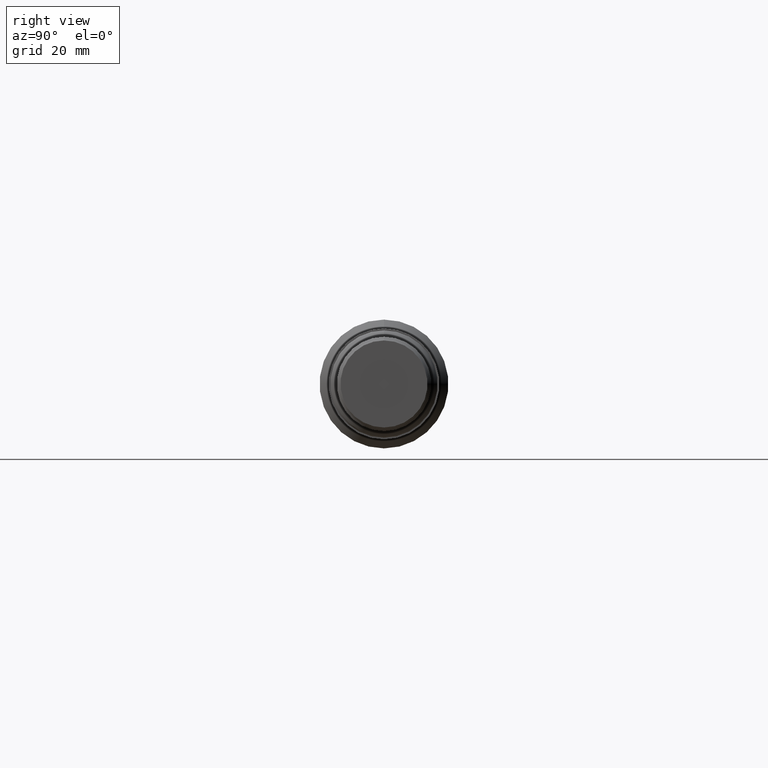
[diagram: clean part render]
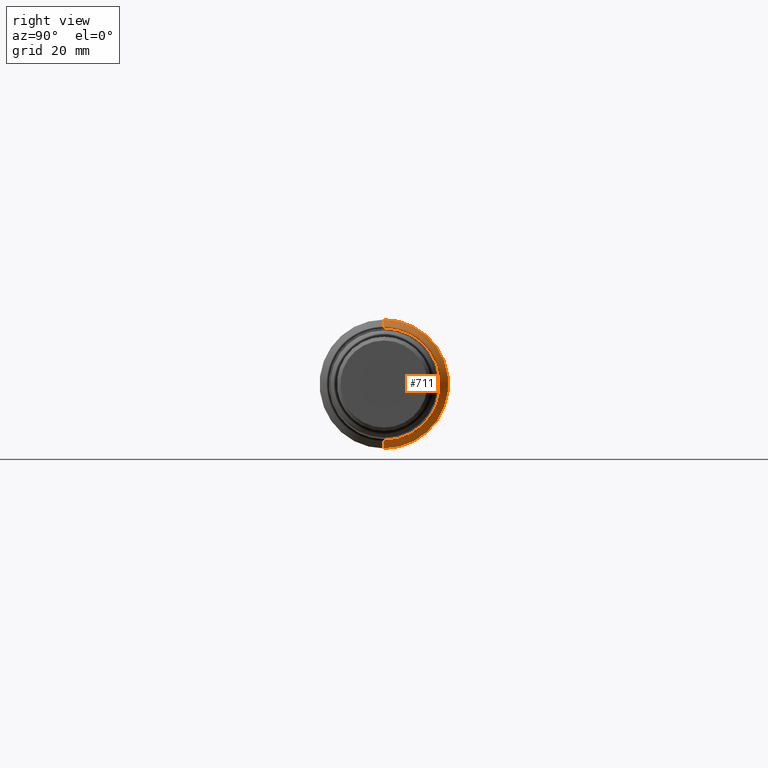
[diagram: same view with one face highlighted and labeled with its STEP entity id]
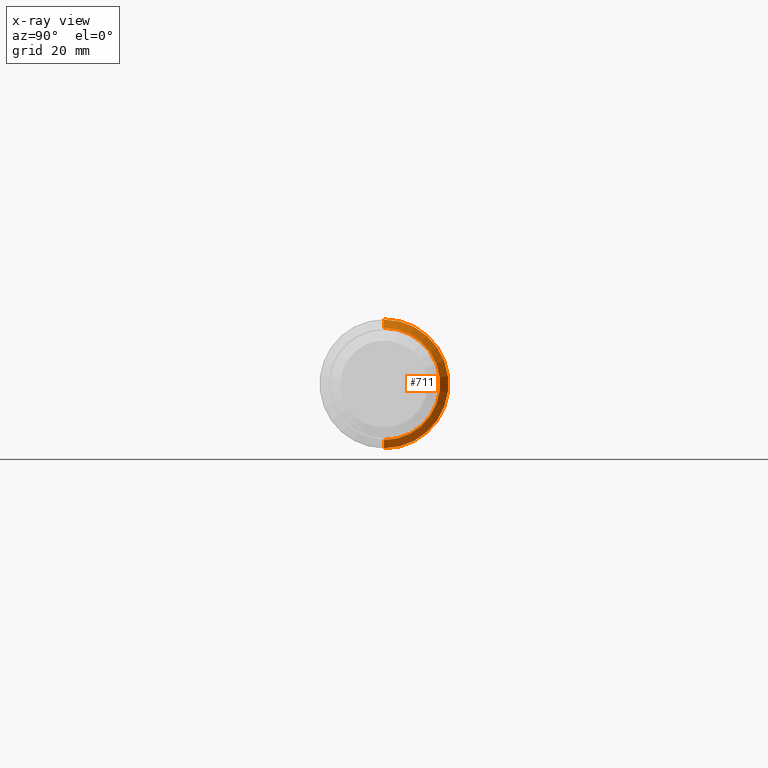
[diagram: x-ray of the same camera — body ghosted, the highlighted face saturated]
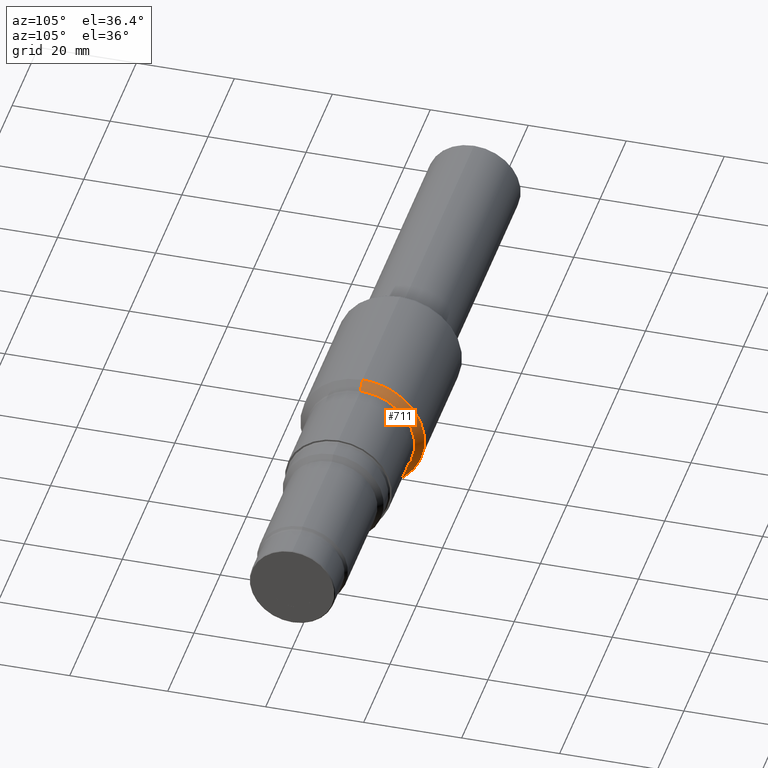
[diagram: same view with one face highlighted and labeled with its STEP entity id]
A machine part, right view. The second image highlights one B-rep face of the part: STEP entity #711.
The next image is the same camera in x-ray: the body ghosted, the highlighted face saturated — about 0% of this face is hidden behind the body in this view.
A second angle (auxiliary view) of the same face is appended — the face is thin or edge-on in the first view.
In plain terms, the highlighted conical surface has half-angle 45 deg.
Its self-contained STEP definition (entity closure, byte-faithful):
#14 = EDGE_CURVE ( 'NONE', #61, #438, #849, .T. ) ;
#17 = DIRECTION ( 'NONE',  ( -0.7071067811865471286, 0.000000000000000000, 0.7071067811865479058 ) ) ;
#29 = CARTESIAN_POINT ( 'NONE',  ( 3.458056349186104050, 0.000000000000000000, 0.4363436508138959780 ) ) ;
#30 = CARTESIAN_POINT ( 'NONE',  ( 3.394400000000000084, 0.000000000000000000, 0.000000000000000000 ) ) ;
#61 = VERTEX_POINT ( 'NONE', #29 ) ;
#82 = DIRECTION ( 'NONE',  ( -1.000000000000000000, -0.000000000000000000, -0.000000000000000000 ) ) ;
#111 = CARTESIAN_POINT ( 'NONE',  ( 3.458056349186104050, 5.343668552975080613E-17, -0.4363436508138959780 ) ) ;
#116 = CONICAL_SURFACE ( 'NONE', #931, 0.4363436508138960335, 0.7853981633974488341 ) ;
#168 = LINE ( 'NONE', #415, #744 ) ;
#250 = CARTESIAN_POINT ( 'NONE',  ( 3.458056349186104050, 0.000000000000000000, 0.000000000000000000 ) ) ;
#274 = DIRECTION ( 'NONE',  ( -1.000000000000000000, -0.000000000000000000, -0.000000000000000000 ) ) ;
#314 = CARTESIAN_POINT ( 'NONE',  ( 3.394400000000000084, 0.000000000000000000, 0.5000000000000000000 ) ) ;
#319 = DIRECTION ( 'NONE',  ( 0.000000000000000000, 0.000000000000000000, 1.000000000000000000 ) ) ;
#356 = VERTEX_POINT ( 'NONE', #314 ) ;
#357 = AXIS2_PLACEMENT_3D ( 'NONE', #1047, #82, #319 ) ;
#415 = CARTESIAN_POINT ( 'NONE',  ( 3.458056349186104050, 5.343668552975081229E-17, -0.4363436508138960335 ) ) ;
#438 = VERTEX_POINT ( 'NONE', #111 ) ;
#468 = CARTESIAN_POINT ( 'NONE',  ( 3.394400000000000084, 6.123233995736766036E-17, -0.5000000000000000000 ) ) ;
#521 = ORIENTED_EDGE ( 'NONE', *, *, #1041, .F. ) ;
#575 = FACE_OUTER_BOUND ( 'NONE', #1027, .T. ) ;
#577 = ORIENTED_EDGE ( 'NONE', *, *, #14, .T. ) ;
#641 = DIRECTION ( 'NONE',  ( -1.000000000000000000, -0.000000000000000000, -0.000000000000000000 ) ) ;
#666 = AXIS2_PLACEMENT_3D ( 'NONE', #30, #274, #814 ) ;
#673 = VERTEX_POINT ( 'NONE', #468 ) ;
#711 = ADVANCED_FACE ( 'NONE', ( #575 ), #116, .T. ) ;
#730 = EDGE_CURVE ( 'NONE', #438, #673, #168, .T. ) ;
#739 = CARTESIAN_POINT ( 'NONE',  ( 3.458056349186104050, 0.000000000000000000, 0.4363436508138960335 ) ) ;
#744 = VECTOR ( 'NONE', #828, 39.37007874015748143 ) ;
#807 = DIRECTION ( 'NONE',  ( 0.000000000000000000, 0.000000000000000000, 1.000000000000000000 ) ) ;
#814 = DIRECTION ( 'NONE',  ( 0.000000000000000000, 0.000000000000000000, 1.000000000000000000 ) ) ;
#828 = DIRECTION ( 'NONE',  ( -0.7071067811865471286, 8.659560562354937789E-17, -0.7071067811865479058 ) ) ;
#830 = CIRCLE ( 'NONE', #666, 0.5000000000000000000 ) ;
#849 = CIRCLE ( 'NONE', #357, 0.4363436508138960335 ) ;
#897 = VECTOR ( 'NONE', #17, 39.37007874015748143 ) ;
#931 = AXIS2_PLACEMENT_3D ( 'NONE', #250, #641, #807 ) ;
#994 = ORIENTED_EDGE ( 'NONE', *, *, #730, .T. ) ;
#1000 = EDGE_CURVE ( 'NONE', #61, #356, #1002, .T. ) ;
#1002 = LINE ( 'NONE', #739, #897 ) ;
#1027 = EDGE_LOOP ( 'NONE', ( #577, #994, #521, #1036 ) ) ;
#1036 = ORIENTED_EDGE ( 'NONE', *, *, #1000, .F. ) ;
#1041 = EDGE_CURVE ( 'NONE', #356, #673, #830, .T. ) ;
#1047 = CARTESIAN_POINT ( 'NONE',  ( 3.458056349186104050, 0.000000000000000000, 0.000000000000000000 ) ) ;